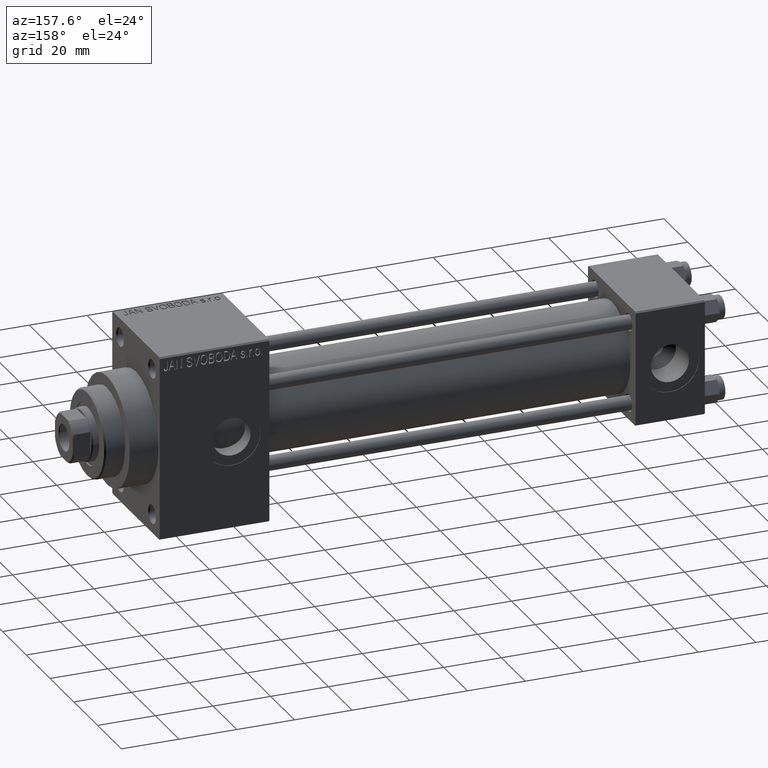
[diagram: clean part render]
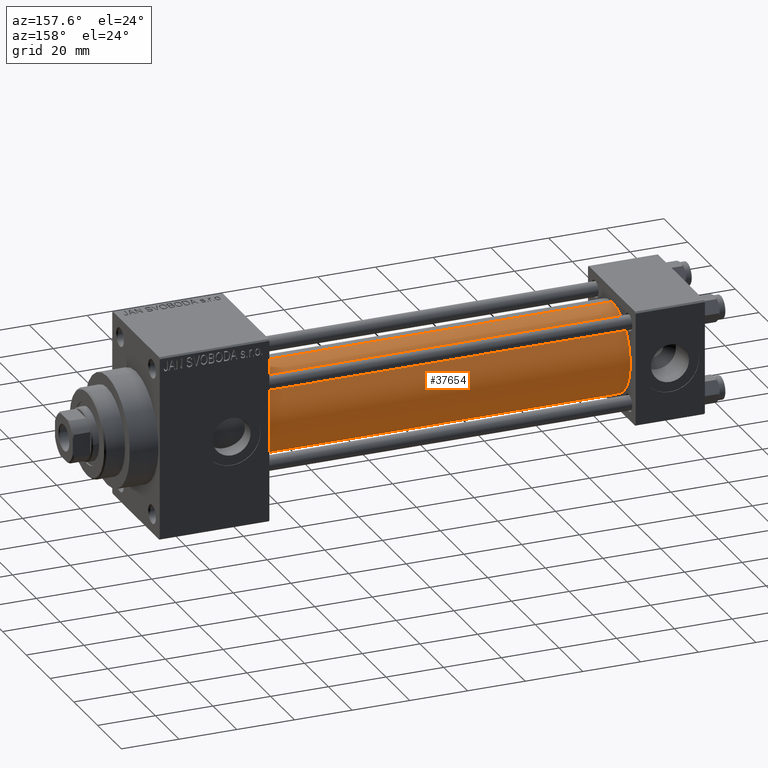
[diagram: same view with one face highlighted and labeled with its STEP entity id]
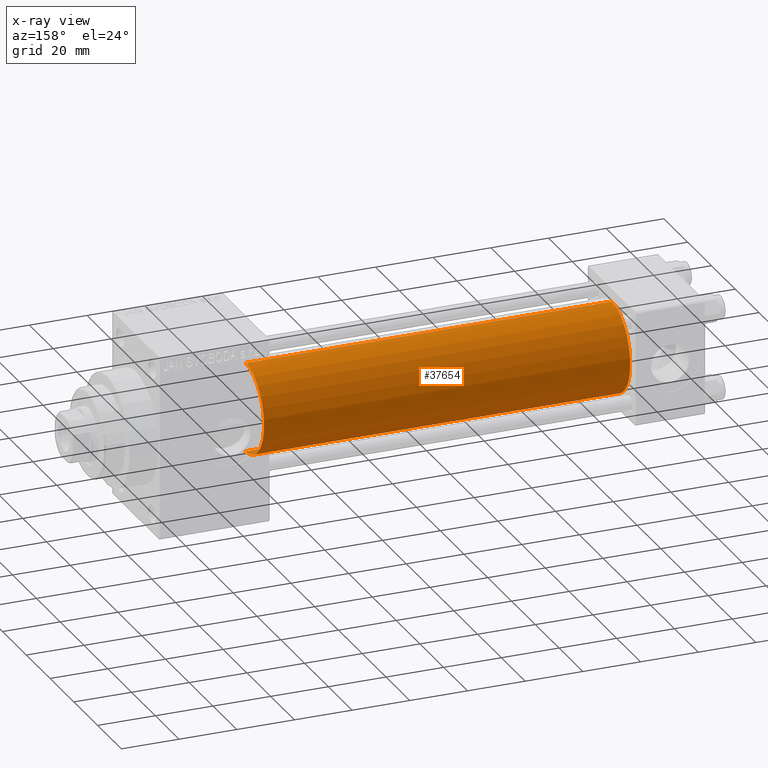
[diagram: x-ray of the same camera — body ghosted, the highlighted face saturated]
A machine part, auxiliary view. The second image highlights one B-rep face of the part: STEP entity #37654.
The next image is the same camera in x-ray: the body ghosted, the highlighted face saturated — about 0% of this face is hidden behind the body in this view.
In plain terms, the highlighted cylindrical surface (partial cylindrical patch) has radius 15.5 mm, axis along (-1, -0, -0).
Its self-contained STEP definition (entity closure, byte-faithful):
#1721 = DIRECTION ( 'NONE',  ( 0.000000000000000000, 0.000000000000000000, 1.000000000000000000 ) ) ;
#2334 = CARTESIAN_POINT ( 'NONE',  ( 23.99999999999999289, -2.602085213965210642E-15, 15.50000000000000000 ) ) ;
#5058 = CYLINDRICAL_SURFACE ( 'NONE', #41207, 15.50000000000000000 ) ;
#5961 = DIRECTION ( 'NONE',  ( 1.000000000000000000, 0.000000000000000000, 0.000000000000000000 ) ) ;
#6297 = DIRECTION ( 'NONE',  ( -1.000000000000000000, -0.000000000000000000, -0.000000000000000000 ) ) ;
#7135 = ORIENTED_EDGE ( 'NONE', *, *, #13138, .T. ) ;
#9328 = CARTESIAN_POINT ( 'NONE',  ( 151.0000000000000000, -2.602085213965210642E-15, 0.000000000000000000 ) ) ;
#10441 = DIRECTION ( 'NONE',  ( 1.000000000000000000, 0.000000000000000000, 0.000000000000000000 ) ) ;
#13138 = EDGE_CURVE ( 'NONE', #38275, #13939, #13902, .T. ) ;
#13902 = LINE ( 'NONE', #39356, #14840 ) ;
#13939 = VERTEX_POINT ( 'NONE', #33907 ) ;
#14840 = VECTOR ( 'NONE', #6297, 1000.000000000000000 ) ;
#15036 = VECTOR ( 'NONE', #34495, 1000.000000000000000 ) ;
#19368 = VERTEX_POINT ( 'NONE', #31525 ) ;
#23108 = EDGE_CURVE ( 'NONE', #19368, #31644, #23810, .T. ) ;
#23769 = ORIENTED_EDGE ( 'NONE', *, *, #31272, .F. ) ;
#23810 = LINE ( 'NONE', #38056, #15036 ) ;
#24048 = DIRECTION ( 'NONE',  ( 0.000000000000000000, 0.000000000000000000, 1.000000000000000000 ) ) ;
#24276 = CARTESIAN_POINT ( 'NONE',  ( 23.99999999999999289, -2.602085213965210642E-15, 0.000000000000000000 ) ) ;
#24953 = CARTESIAN_POINT ( 'NONE',  ( 151.0000000000000000, -2.602085213965210642E-15, 0.000000000000000000 ) ) ;
#26615 = EDGE_CURVE ( 'NONE', #13939, #31644, #44009, .T. ) ;
#27292 = CARTESIAN_POINT ( 'NONE',  ( 151.0000000000000000, -7.038826752868131828E-16, -15.50000000000000000 ) ) ;
#31121 = CIRCLE ( 'NONE', #43284, 15.50000000000000000 ) ;
#31272 = EDGE_CURVE ( 'NONE', #38275, #19368, #31121, .T. ) ;
#31525 = CARTESIAN_POINT ( 'NONE',  ( 151.0000000000000000, -2.602085213965210642E-15, 15.50000000000000000 ) ) ;
#31625 = ORIENTED_EDGE ( 'NONE', *, *, #26615, .T. ) ;
#31644 = VERTEX_POINT ( 'NONE', #2334 ) ;
#33907 = CARTESIAN_POINT ( 'NONE',  ( 23.99999999999999289, -7.038826752868131828E-16, -15.50000000000000000 ) ) ;
#34495 = DIRECTION ( 'NONE',  ( -1.000000000000000000, -0.000000000000000000, -0.000000000000000000 ) ) ;
#34538 = DIRECTION ( 'NONE',  ( -1.000000000000000000, -0.000000000000000000, -0.000000000000000000 ) ) ;
#37409 = FACE_OUTER_BOUND ( 'NONE', #43853, .T. ) ;
#37654 = ADVANCED_FACE ( 'NONE', ( #37409 ), #5058, .T. ) ;
#38056 = CARTESIAN_POINT ( 'NONE',  ( 151.0000000000000000, -2.602085213965210642E-15, 15.50000000000000000 ) ) ;
#38275 = VERTEX_POINT ( 'NONE', #27292 ) ;
#39356 = CARTESIAN_POINT ( 'NONE',  ( 151.0000000000000000, -7.038826752868131828E-16, -15.50000000000000000 ) ) ;
#40333 = ORIENTED_EDGE ( 'NONE', *, *, #23108, .F. ) ;
#41207 = AXIS2_PLACEMENT_3D ( 'NONE', #9328, #34538, #1721 ) ;
#43284 = AXIS2_PLACEMENT_3D ( 'NONE', #24953, #10441, #47061 ) ;
#43853 = EDGE_LOOP ( 'NONE', ( #23769, #7135, #31625, #40333 ) ) ;
#44009 = CIRCLE ( 'NONE', #44742, 15.50000000000000000 ) ;
#44742 = AXIS2_PLACEMENT_3D ( 'NONE', #24276, #5961, #24048 ) ;
#47061 = DIRECTION ( 'NONE',  ( 0.000000000000000000, 0.000000000000000000, -1.000000000000000000 ) ) ;